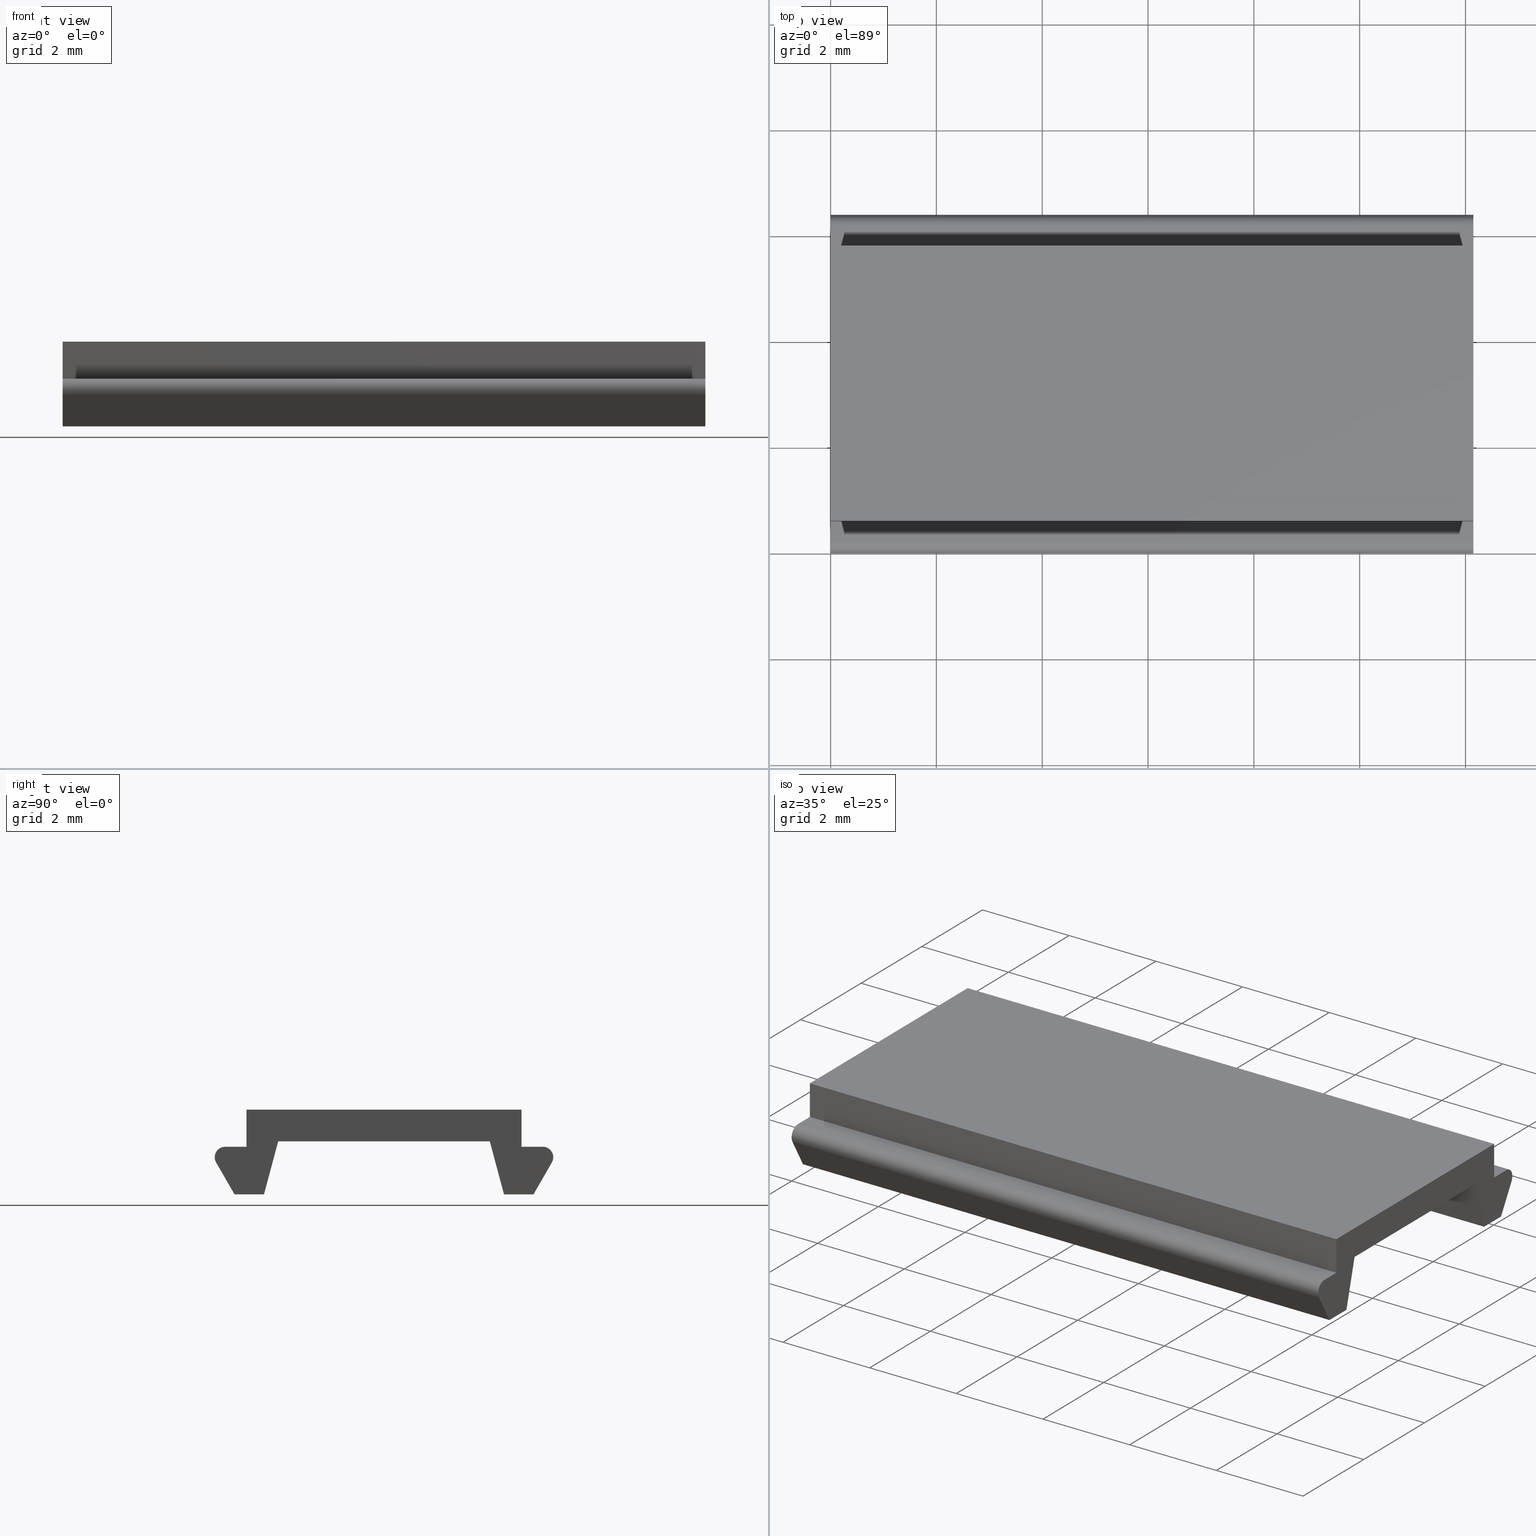
[diagram: canonical four-view strip — front | top / right | iso, engineering-drawing reading convention]
A machine part, canonical four-view strip (front | top / right | iso — engineering-drawing reading convention). The complete STEP part file that produces these views, byte-faithful:
ISO-10303-21;
HEADER;
FILE_DESCRIPTION(('Creo Elements/Direct Modeling STEP Export'),'2;1');
FILE_NAME(
'D:/temp/JobSpoolerServerData/JobServer Files/a916b6dc-9c85-46f2-8b94-6a
b99b1b7ea6/work/output/model.stp','2018-04-03T14:15:28',(''),(''),
'Creo Elements/Direct Modeling STEP processor for AP214 (Solid Model)',
'Creo Elements/Direct Modeling 18.1I  14-Aug-2016 (C) Parametric Technol
ogy GmbH','');
FILE_SCHEMA(('AUTOMOTIVE_DESIGN { 1 0 10303 214 1 1 1 1 }'));
ENDSEC;
DATA;
#10=CARTESIAN_POINT('',(3.25171605650094,-2.,1.30000000000155));
#20=DIRECTION('',(-3.42113882891801E-49,-1.,0.));
#30=DIRECTION('',(0.98480775301208,-3.36916404284913E-49,
0.173648177667655));
#40=AXIS2_PLACEMENT_3D('',#10,#20,#30);
#50=PLANE('',#40);
#60=CARTESIAN_POINT('',(3.32224684878486,-2.,0.900000000000214));
#70=DIRECTION('',(-1.,3.42113882891801E-49,-1.29901644996266E-12));
#80=VECTOR('',#70,1.);
#90=LINE('',#60,#80);
#100=CARTESIAN_POINT('',(6.1999936952603,-2.,0.900000000003953));
#110=VERTEX_POINT('',#100);
#120=CARTESIAN_POINT('',(5.79881796228878,-2.,0.900000000003431));
#130=VERTEX_POINT('',#120);
#140=EDGE_CURVE('',#110,#130,#90,.T.);
#150=ORIENTED_EDGE('',*,*,#140,.T.);
#160=CARTESIAN_POINT('',(6.19999352896042,-2.,0.70117547089784));
#170=DIRECTION('',(-3.42113882891801E-49,-1.,0.));
#180=DIRECTION('',(0.98480775301208,-3.36916404284913E-49,
0.173648177667655));
#190=AXIS2_PLACEMENT_3D('',#160,#170,#180);
#200=CIRCLE('',#190,0.198824529108709);
#210=CARTESIAN_POINT('',(6.37202304304583,-2.,0.601490769675634));
#220=VERTEX_POINT('',#210);
#230=EDGE_CURVE('',#220,#110,#200,.T.);
#240=ORIENTED_EDGE('',*,*,#230,.T.);
#250=CARTESIAN_POINT('',(7.17467322075392,-2.,1.99172319222589));
#260=DIRECTION('',(0.499999586205083,-1.71056799880915E-49,
0.866025642688914));
#270=VECTOR('',#260,1.);
#280=LINE('',#250,#270);
#290=CARTESIAN_POINT('',(6.02475256845767,-2.,3.78763687081118E-12));
#300=VERTEX_POINT('',#290);
#310=EDGE_CURVE('',#300,#220,#280,.T.);
#320=ORIENTED_EDGE('',*,*,#310,.T.);
#330=CARTESIAN_POINT('',(3.48094113142307,-2.,7.54285522930331E-13));
#340=DIRECTION('',(1.,-3.42113882891801E-49,1.19254606190111E-12));
#350=VECTOR('',#340,1.);
#360=LINE('',#330,#350);
#370=CARTESIAN_POINT('',(5.46696525111425,-2.,3.12283532366564E-12));
#380=VERTEX_POINT('',#370);
#390=EDGE_CURVE('',#380,#300,#360,.T.);
#400=ORIENTED_EDGE('',*,*,#390,.T.);
#410=CARTESIAN_POINT('',(5.03440517284383,-2.,1.61433618942948));
#420=DIRECTION('',(0.258819045103242,-8.85455884866183E-50,
-0.965925826288875));
#430=VECTOR('',#420,1.);
#440=LINE('',#410,#430);
#450=CARTESIAN_POINT('',(5.19901605868237,-2.,1.00000000000297));
#460=VERTEX_POINT('',#450);
#470=EDGE_CURVE('',#460,#380,#440,.T.);
#480=ORIENTED_EDGE('',*,*,#470,.T.);
#490=CARTESIAN_POINT('',(3.3046141507137,-2.,1.00000000000157));
#500=DIRECTION('',(1.,-3.42113882891801E-49,7.41434691420295E-13));
#510=VECTOR('',#500,1.);
#520=LINE('',#490,#510);
#530=CARTESIAN_POINT('',(1.198619865895,-2.,1.00000000000001));
#540=VERTEX_POINT('',#530);
#550=EDGE_CURVE('',#540,#460,#520,.T.);
#560=ORIENTED_EDGE('',*,*,#550,.T.);
#570=CARTESIAN_POINT('',(1.18117862033904,-2.,0.934908385437702));
#580=DIRECTION('',(0.258819045101854,-8.85455884861435E-50,
0.965925826289247));
#590=VECTOR('',#580,1.);
#600=LINE('',#570,#590);
#610=CARTESIAN_POINT('',(0.930670673464537,-2.,-2.77999845366139E-13));
#620=VERTEX_POINT('',#610);
#630=EDGE_CURVE('',#620,#540,#600,.T.);
#640=ORIENTED_EDGE('',*,*,#630,.T.);
#650=CARTESIAN_POINT('',(3.48094113142325,-2.,-2.78221889971064E-13));
#660=DIRECTION('',(1.,-3.42113882891801E-49,-2.77555756156289E-17));
#670=VECTOR('',#660,1.);
#680=LINE('',#650,#670);
#690=CARTESIAN_POINT('',(0.372883356121179,-2.,-2.77999845366139E-13));
#700=VERTEX_POINT('',#690);
#710=EDGE_CURVE('',#700,#620,#680,.T.);
#720=ORIENTED_EDGE('',*,*,#710,.T.);
#730=CARTESIAN_POINT('',(-0.0423296762644876,-2.,0.719170861624918));
#740=DIRECTION('',(0.499999586206395,-1.71056799881364E-49,
-0.866025642688156));
#750=VECTOR('',#740,1.);
#760=LINE('',#730,#750);
#770=CARTESIAN_POINT('',(0.0256128815321159,-2.,0.601490769671017));
#780=VERTEX_POINT('',#770);
#790=EDGE_CURVE('',#780,#700,#760,.T.);
#800=ORIENTED_EDGE('',*,*,#790,.T.);
#810=CARTESIAN_POINT('',(0.197642395617414,-2.,0.701175470893366));
#820=DIRECTION('',(-3.42113882891801E-49,-1.,0.));
#830=DIRECTION('',(0.98480775301208,-3.36916404284913E-49,
0.173648177667655));
#840=AXIS2_PLACEMENT_3D('',#810,#820,#830);
#850=CIRCLE('',#840,0.198824529108738);
#860=CARTESIAN_POINT('',(0.197642229317264,-2.,0.900000000002034));
#870=VERTEX_POINT('',#860);
#880=EDGE_CURVE('',#870,#780,#850,.T.);
#890=ORIENTED_EDGE('',*,*,#880,.T.);
#900=CARTESIAN_POINT('',(3.32224684878444,-2.,0.900000000002615));
#910=DIRECTION('',(1.,-3.42113882891801E-49,1.85934601049098E-13));
#920=VECTOR('',#910,1.);
#930=LINE('',#900,#920);
#940=CARTESIAN_POINT('',(0.598817962288826,-2.,0.900000000002109));
#950=VERTEX_POINT('',#940);
#960=EDGE_CURVE('',#870,#950,#930,.T.);
#970=ORIENTED_EDGE('',*,*,#960,.F.);
#980=CARTESIAN_POINT('',(0.598817962288898,-2.,0.832222488919884));
#990=DIRECTION('',(1.06326059068351E-12,-3.63756209204566E-61,-1.));
#1000=VECTOR('',#990,1.);
#1010=LINE('',#980,#1000);
#1020=CARTESIAN_POINT('',(0.598817962288082,-2.,1.59999999999953));
#1030=VERTEX_POINT('',#1020);
#1040=EDGE_CURVE('',#1030,#950,#1010,.T.);
#1050=ORIENTED_EDGE('',*,*,#1040,.T.);
#1060=CARTESIAN_POINT('',(3.19881796228819,-2.,1.60000000000147));
#1070=DIRECTION('',(-1.,3.42113882891801E-49,-7.45070671825943E-13));
#1080=VECTOR('',#1070,1.);
#1090=LINE('',#1060,#1080);
#1100=CARTESIAN_POINT('',(5.79881796228829,-2.,1.6000000000034));
#1110=VERTEX_POINT('',#1100);
#1120=EDGE_CURVE('',#1110,#1030,#1090,.T.);
#1130=ORIENTED_EDGE('',*,*,#1120,.T.);
#1140=CARTESIAN_POINT('',(5.79881796228819,-2.,1.74912278860772));
#1150=DIRECTION('',(-6.94277968449342E-13,2.37522131592436E-61,1.));
#1160=VECTOR('',#1150,1.);
#1170=LINE('',#1140,#1160);
#1180=EDGE_CURVE('',#130,#1110,#1170,.T.);
#1190=ORIENTED_EDGE('',*,*,#1180,.T.);
#1200=EDGE_LOOP('',(#1190,#1130,#1050,#970,#890,#800,#720,#640,#560,#480
,#400,#320,#240,#150));
#1210=FACE_OUTER_BOUND('',#1200,.T.);
#1220=ADVANCED_FACE('',(#1210),#50,.T.);
#1230=COLOUR_RGB('',0.980392217636108,1.,1.);
#1240=FILL_AREA_STYLE_COLOUR('',#1230);
#1250=FILL_AREA_STYLE('',(#1240));
#1260=SURFACE_STYLE_FILL_AREA(#1250);
#1270=SURFACE_SIDE_STYLE('',(#1260));
#1280=SURFACE_STYLE_USAGE(.BOTH.,#1270);
#1290=PRESENTATION_STYLE_ASSIGNMENT((#1280));
#1300=CARTESIAN_POINT('',(3.25171605650094,10.15,1.30000000000155));
#1310=DIRECTION('',(-3.42113882891801E-49,-1.,0.));
#1320=DIRECTION('',(0.98480775301208,-3.36916404284913E-49,
0.173648177667655));
#1330=AXIS2_PLACEMENT_3D('',#1300,#1310,#1320);
#1340=PLANE('',#1330);
#1350=CARTESIAN_POINT('',(5.79881796228819,10.15,1.74912278860772));
#1360=DIRECTION('',(-6.94277968449342E-13,2.37522131592436E-61,1.));
#1370=VECTOR('',#1360,1.);
#1380=LINE('',#1350,#1370);
#1390=CARTESIAN_POINT('',(5.79881796228878,10.15,0.900000000003431));
#1400=VERTEX_POINT('',#1390);
#1410=CARTESIAN_POINT('',(5.79881796228829,10.15,1.6000000000034));
#1420=VERTEX_POINT('',#1410);
#1430=EDGE_CURVE('',#1400,#1420,#1380,.T.);
#1440=ORIENTED_EDGE('',*,*,#1430,.F.);
#1450=CARTESIAN_POINT('',(3.19881796228819,10.15,1.60000000000147));
#1460=DIRECTION('',(-1.,3.42113882891801E-49,-7.45070671825943E-13));
#1470=VECTOR('',#1460,1.);
#1480=LINE('',#1450,#1470);
#1490=CARTESIAN_POINT('',(0.598817962288082,10.15,1.59999999999953));
#1500=VERTEX_POINT('',#1490);
#1510=EDGE_CURVE('',#1420,#1500,#1480,.T.);
#1520=ORIENTED_EDGE('',*,*,#1510,.F.);
#1530=CARTESIAN_POINT('',(0.598817962288898,10.15,0.832222488919884));
#1540=DIRECTION('',(1.06326059068351E-12,-3.63756209204566E-61,-1.));
#1550=VECTOR('',#1540,1.);
#1560=LINE('',#1530,#1550);
#1570=CARTESIAN_POINT('',(0.598817962288826,10.15,0.900000000002109));
#1580=VERTEX_POINT('',#1570);
#1590=EDGE_CURVE('',#1500,#1580,#1560,.T.);
#1600=ORIENTED_EDGE('',*,*,#1590,.F.);
#1610=CARTESIAN_POINT('',(3.32224684878444,10.15,0.900000000002615));
#1620=DIRECTION('',(1.,-3.42113882891801E-49,1.85934601049098E-13));
#1630=VECTOR('',#1620,1.);
#1640=LINE('',#1610,#1630);
#1650=CARTESIAN_POINT('',(0.197642229317264,10.15,0.900000000002034));
#1660=VERTEX_POINT('',#1650);
#1670=EDGE_CURVE('',#1660,#1580,#1640,.T.);
#1680=ORIENTED_EDGE('',*,*,#1670,.T.);
#1690=CARTESIAN_POINT('',(0.197642395617414,10.15,0.701175470893366));
#1700=DIRECTION('',(-3.42113882891801E-49,-1.,0.));
#1710=DIRECTION('',(0.98480775301208,-3.36916404284913E-49,
0.173648177667655));
#1720=AXIS2_PLACEMENT_3D('',#1690,#1700,#1710);
#1730=CIRCLE('',#1720,0.198824529108738);
#1740=CARTESIAN_POINT('',(0.0256128815321159,10.15,0.601490769671017));
#1750=VERTEX_POINT('',#1740);
#1760=EDGE_CURVE('',#1660,#1750,#1730,.T.);
#1770=ORIENTED_EDGE('',*,*,#1760,.F.);
#1780=CARTESIAN_POINT('',(-0.0423296762644876,10.15,0.719170861624918));
#1790=DIRECTION('',(0.499999586206395,-1.71056799881364E-49,
-0.866025642688156));
#1800=VECTOR('',#1790,1.);
#1810=LINE('',#1780,#1800);
#1820=CARTESIAN_POINT('',(0.372883356121178,10.15,-2.78221889971064E-13)
);
#1830=VERTEX_POINT('',#1820);
#1840=EDGE_CURVE('',#1750,#1830,#1810,.T.);
#1850=ORIENTED_EDGE('',*,*,#1840,.F.);
#1860=CARTESIAN_POINT('',(3.48094113142325,10.15,-2.78221889971064E-13))
;
#1870=DIRECTION('',(1.,-3.42113882891801E-49,-2.77555756156289E-17));
#1880=VECTOR('',#1870,1.);
#1890=LINE('',#1860,#1880);
#1900=CARTESIAN_POINT('',(0.930670673464537,10.15,-2.77999845366139E-13)
);
#1910=VERTEX_POINT('',#1900);
#1920=EDGE_CURVE('',#1830,#1910,#1890,.T.);
#1930=ORIENTED_EDGE('',*,*,#1920,.F.);
#1940=CARTESIAN_POINT('',(1.18117862033904,10.15,0.934908385437702));
#1950=DIRECTION('',(0.258819045101854,-8.85455884861435E-50,
0.965925826289247));
#1960=VECTOR('',#1950,1.);
#1970=LINE('',#1940,#1960);
#1980=CARTESIAN_POINT('',(1.198619865895,10.15,1.00000000000001));
#1990=VERTEX_POINT('',#1980);
#2000=EDGE_CURVE('',#1910,#1990,#1970,.T.);
#2010=ORIENTED_EDGE('',*,*,#2000,.F.);
#2020=CARTESIAN_POINT('',(3.3046141507137,10.15,1.00000000000157));
#2030=DIRECTION('',(1.,-3.42113882891801E-49,7.41434691420295E-13));
#2040=VECTOR('',#2030,1.);
#2050=LINE('',#2020,#2040);
#2060=CARTESIAN_POINT('',(5.19901605868237,10.15,1.00000000000297));
#2070=VERTEX_POINT('',#2060);
#2080=EDGE_CURVE('',#1990,#2070,#2050,.T.);
#2090=ORIENTED_EDGE('',*,*,#2080,.F.);
#2100=CARTESIAN_POINT('',(5.03440517284383,10.15,1.61433618942948));
#2110=DIRECTION('',(0.258819045103242,-8.85455884866183E-50,
-0.965925826288875));
#2120=VECTOR('',#2110,1.);
#2130=LINE('',#2100,#2120);
#2140=CARTESIAN_POINT('',(5.46696525111425,10.15,3.12283532366564E-12));
#2150=VERTEX_POINT('',#2140);
#2160=EDGE_CURVE('',#2070,#2150,#2130,.T.);
#2170=ORIENTED_EDGE('',*,*,#2160,.F.);
#2180=CARTESIAN_POINT('',(3.48094113142307,10.15,7.54285522930331E-13));
#2190=DIRECTION('',(1.,-3.42113882891801E-49,1.19254606190111E-12));
#2200=VECTOR('',#2190,1.);
#2210=LINE('',#2180,#2200);
#2220=CARTESIAN_POINT('',(6.02475256845767,10.15,3.78808096002103E-12));
#2230=VERTEX_POINT('',#2220);
#2240=EDGE_CURVE('',#2150,#2230,#2210,.T.);
#2250=ORIENTED_EDGE('',*,*,#2240,.F.);
#2260=CARTESIAN_POINT('',(7.17467322075392,10.15,1.99172319222589));
#2270=DIRECTION('',(0.499999586205083,-1.71056799880915E-49,
0.866025642688914));
#2280=VECTOR('',#2270,1.);
#2290=LINE('',#2260,#2280);
#2300=CARTESIAN_POINT('',(6.37202304304583,10.15,0.601490769675634));
#2310=VERTEX_POINT('',#2300);
#2320=EDGE_CURVE('',#2230,#2310,#2290,.T.);
#2330=ORIENTED_EDGE('',*,*,#2320,.F.);
#2340=CARTESIAN_POINT('',(6.19999352896042,10.15,0.70117547089784));
#2350=DIRECTION('',(-3.42113882891801E-49,-1.,0.));
#2360=DIRECTION('',(0.98480775301208,-3.36916404284913E-49,
0.173648177667655));
#2370=AXIS2_PLACEMENT_3D('',#2340,#2350,#2360);
#2380=CIRCLE('',#2370,0.198824529108709);
#2390=CARTESIAN_POINT('',(6.1999936952603,10.15,0.900000000003953));
#2400=VERTEX_POINT('',#2390);
#2410=EDGE_CURVE('',#2310,#2400,#2380,.T.);
#2420=ORIENTED_EDGE('',*,*,#2410,.F.);
#2430=CARTESIAN_POINT('',(3.32224684878486,10.15,0.900000000000214));
#2440=DIRECTION('',(-1.,3.42113882891801E-49,-1.29901644996266E-12));
#2450=VECTOR('',#2440,1.);
#2460=LINE('',#2430,#2450);
#2470=EDGE_CURVE('',#2400,#1400,#2460,.T.);
#2480=ORIENTED_EDGE('',*,*,#2470,.F.);
#2490=EDGE_LOOP('',(#2480,#2420,#2330,#2250,#2170,#2090,#2010,#1930,
#1850,#1770,#1680,#1600,#1520,#1440));
#2500=FACE_OUTER_BOUND('',#2490,.T.);
#2510=ADVANCED_FACE('',(#2500),#1340,.F.);
#2520=COLOUR_RGB('',0.980392217636108,1.,1.);
#2530=FILL_AREA_STYLE_COLOUR('',#2520);
#2540=FILL_AREA_STYLE('',(#2530));
#2550=SURFACE_STYLE_FILL_AREA(#2540);
#2560=SURFACE_SIDE_STYLE('',(#2550));
#2570=SURFACE_STYLE_USAGE(.BOTH.,#2560);
#2580=PRESENTATION_STYLE_ASSIGNMENT((#2570));
#2590=CARTESIAN_POINT('',(0.286280839633144,-3.53938975060473E-49,
0.15000012413783));
#2600=DIRECTION('',(0.866025642688156,-2.96279395303913E-49,
0.499999586206395));
#2610=DIRECTION('',(0.499999586206395,-1.71056799881364E-49,
-0.866025642688156));
#2620=AXIS2_PLACEMENT_3D('',#2590,#2600,#2610);
#2630=PLANE('',#2620);
#2640=CARTESIAN_POINT('',(0.372883356121179,-3.83566898244395E-49,
-2.77999845366139E-13));
#2650=DIRECTION('',(-3.42113882891801E-49,-1.,0.));
#2660=VECTOR('',#2650,1.);
#2670=LINE('',#2640,#2660);
#2680=EDGE_CURVE('',#1830,#700,#2670,.T.);
#2690=ORIENTED_EDGE('',*,*,#2680,.T.);
#2700=ORIENTED_EDGE('',*,*,#1840,.T.);
#2710=CARTESIAN_POINT('',(0.0256128815321137,-2.64760847769052E-49,
0.601490769671021));
#2720=DIRECTION('',(3.42113882891801E-49,1.,0.));
#2730=VECTOR('',#2720,1.);
#2740=LINE('',#2710,#2730);
#2750=EDGE_CURVE('',#780,#1750,#2740,.T.);
#2760=ORIENTED_EDGE('',*,*,#2750,.T.);
#2770=ORIENTED_EDGE('',*,*,#790,.F.);
#2780=EDGE_LOOP('',(#2770,#2760,#2700,#2690));
#2790=FACE_OUTER_BOUND('',#2780,.T.);
#2800=ADVANCED_FACE('',(#2790),#2630,.F.);
#2810=COLOUR_RGB('',0.980392217636108,1.,1.);
#2820=FILL_AREA_STYLE_COLOUR('',#2810);
#2830=FILL_AREA_STYLE('',(#2820));
#2840=SURFACE_STYLE_FILL_AREA(#2830);
#2850=SURFACE_SIDE_STYLE('',(#2840));
#2860=SURFACE_STYLE_USAGE(.BOTH.,#2850);
#2870=PRESENTATION_STYLE_ASSIGNMENT((#2860));
#2880=CARTESIAN_POINT('',(0.197642395617414,-3.23614532804764E-49,
0.701175470893366));
#2890=DIRECTION('',(-3.42113882891801E-49,-1.,0.));
#2900=DIRECTION('',(0.98480775301208,-3.36916404284913E-49,
0.173648177667655));
#2910=AXIS2_PLACEMENT_3D('',#2880,#2890,#2900);
#2920=CYLINDRICAL_SURFACE('',#2910,0.198824529108738);
#2930=ORIENTED_EDGE('',*,*,#880,.F.);
#2940=ORIENTED_EDGE('',*,*,#2750,.F.);
#2950=ORIENTED_EDGE('',*,*,#1760,.T.);
#2960=CARTESIAN_POINT('',(0.197642229317264,-3.23614475911174E-49,
0.900000000002034));
#2970=DIRECTION('',(3.42113882891801E-49,1.,0.));
#2980=VECTOR('',#2970,1.);
#2990=LINE('',#2960,#2980);
#3000=EDGE_CURVE('',#870,#1660,#2990,.T.);
#3010=ORIENTED_EDGE('',*,*,#3000,.T.);
#3020=EDGE_LOOP('',(#3010,#2950,#2940,#2930));
#3030=FACE_OUTER_BOUND('',#3020,.T.);
#3040=ADVANCED_FACE('',(#3030),#2920,.T.);
#3050=COLOUR_RGB('',0.980392217636108,1.,1.);
#3060=FILL_AREA_STYLE_COLOUR('',#3050);
#3070=FILL_AREA_STYLE('',(#3060));
#3080=SURFACE_STYLE_FILL_AREA(#3070);
#3090=SURFACE_SIDE_STYLE('',(#3080));
#3100=SURFACE_STYLE_USAGE(.BOTH.,#3090);
#3110=PRESENTATION_STYLE_ASSIGNMENT((#3100));
#3120=CARTESIAN_POINT('',(0.623739878273056,-4.69388397086507E-49,
-2.77999845366139E-13));
#3130=DIRECTION('',(2.77555756156289E-17,-9.4955677457598E-66,1.));
#3140=DIRECTION('',(1.,-3.42113882891801E-49,-2.77555756156289E-17));
#3150=AXIS2_PLACEMENT_3D('',#3120,#3130,#3140);
#3160=PLANE('',#3150);
#3170=ORIENTED_EDGE('',*,*,#710,.F.);
#3180=CARTESIAN_POINT('',(0.930670673464537,-5.74393683208533E-49,
-2.77999845366139E-13));
#3190=DIRECTION('',(-3.42113882891801E-49,-1.,0.));
#3200=VECTOR('',#3190,1.);
#3210=LINE('',#3180,#3200);
#3220=EDGE_CURVE('',#1910,#620,#3210,.T.);
#3230=ORIENTED_EDGE('',*,*,#3220,.T.);
#3240=ORIENTED_EDGE('',*,*,#1920,.T.);
#3250=ORIENTED_EDGE('',*,*,#2680,.F.);
#3260=EDGE_LOOP('',(#3250,#3240,#3230,#3170));
#3270=FACE_OUTER_BOUND('',#3260,.T.);
#3280=ADVANCED_FACE('',(#3270),#3160,.F.);
#3290=COLOUR_RGB('',0.980392217636108,1.,1.);
#3300=FILL_AREA_STYLE_COLOUR('',#3290);
#3310=FILL_AREA_STYLE('',(#3300));
#3320=SURFACE_STYLE_FILL_AREA(#3310);
#3330=SURFACE_SIDE_STYLE('',(#3320));
#3340=SURFACE_STYLE_USAGE(.BOTH.,#3330);
#3350=PRESENTATION_STYLE_ASSIGNMENT((#3340));
#3360=CARTESIAN_POINT('',(0.197642229317264,-3.23614475911174E-49,
0.900000000002034));
#3370=DIRECTION('',(1.85934601049098E-13,-6.36108083288449E-62,-1.));
#3380=DIRECTION('',(-1.,3.42113882891801E-49,-1.85934601049098E-13));
#3390=AXIS2_PLACEMENT_3D('',#3360,#3370,#3380);
#3400=PLANE('',#3390);
#3410=ORIENTED_EDGE('',*,*,#960,.T.);
#3420=ORIENTED_EDGE('',*,*,#3000,.F.);
#3430=ORIENTED_EDGE('',*,*,#1670,.F.);
#3440=CARTESIAN_POINT('',(0.598817962288826,-4.60862263640039E-49,
0.900000000002108));
#3450=DIRECTION('',(-3.42113882891801E-49,-1.,0.));
#3460=VECTOR('',#3450,1.);
#3470=LINE('',#3440,#3460);
#3480=EDGE_CURVE('',#1580,#950,#3470,.T.);
#3490=ORIENTED_EDGE('',*,*,#3480,.F.);
#3500=EDGE_LOOP('',(#3490,#3430,#3420,#3410));
#3510=FACE_OUTER_BOUND('',#3500,.T.);
#3520=ADVANCED_FACE('',(#3510),#3400,.F.);
#3530=COLOUR_RGB('',0.980392217636108,1.,1.);
#3540=FILL_AREA_STYLE_COLOUR('',#3530);
#3550=FILL_AREA_STYLE('',(#3540));
#3560=SURFACE_STYLE_FILL_AREA(#3550);
#3570=SURFACE_SIDE_STYLE('',(#3560));
#3580=SURFACE_STYLE_USAGE(.BOTH.,#3570);
#3590=PRESENTATION_STYLE_ASSIGNMENT((#3580));
#3600=CARTESIAN_POINT('',(1.13904021440212,-6.4567979593507E-49,
0.777645713530718));
#3610=DIRECTION('',(-0.965925826289247,3.30456635017286E-49,
0.258819045101854));
#3620=DIRECTION('',(0.258819045101854,-8.85455884861435E-50,
0.965925826289247));
#3630=AXIS2_PLACEMENT_3D('',#3600,#3610,#3620);
#3640=PLANE('',#3630);
#3650=CARTESIAN_POINT('',(1.198619865895,-6.6606282184864E-49,
1.00000000000001));
#3660=DIRECTION('',(-3.42113882891801E-49,-1.,0.));
#3670=VECTOR('',#3660,1.);
#3680=LINE('',#3650,#3670);
#3690=EDGE_CURVE('',#1990,#540,#3680,.T.);
#3700=ORIENTED_EDGE('',*,*,#3690,.T.);
#3710=ORIENTED_EDGE('',*,*,#2000,.T.);
#3720=ORIENTED_EDGE('',*,*,#3220,.F.);
#3730=ORIENTED_EDGE('',*,*,#630,.F.);
#3740=EDGE_LOOP('',(#3730,#3720,#3710,#3700));
#3750=FACE_OUTER_BOUND('',#3740,.T.);
#3760=ADVANCED_FACE('',(#3750),#3640,.F.);
#3770=COLOUR_RGB('',0.980392217636108,1.,1.);
#3780=FILL_AREA_STYLE_COLOUR('',#3770);
#3790=FILL_AREA_STYLE('',(#3780));
#3800=SURFACE_STYLE_FILL_AREA(#3790);
#3810=SURFACE_SIDE_STYLE('',(#3800));
#3820=SURFACE_STYLE_USAGE(.BOTH.,#3810);
#3830=PRESENTATION_STYLE_ASSIGNMENT((#3820));
#3840=CARTESIAN_POINT('',(5.99881796228881,-2.30827723125576E-48,
0.900000000003691));
#3850=DIRECTION('',(1.29901644996266E-12,-4.4441156163705E-61,-1.));
#3860=DIRECTION('',(-1.,3.42113882891801E-49,-1.29901644996266E-12));
#3870=AXIS2_PLACEMENT_3D('',#3840,#3850,#3860);
#3880=PLANE('',#3870);
#3890=CARTESIAN_POINT('',(5.79881796228878,-2.23985445467739E-48,
0.900000000003431));
#3900=DIRECTION('',(-3.42113882891801E-49,-1.,0.));
#3910=VECTOR('',#3900,1.);
#3920=LINE('',#3890,#3910);
#3930=EDGE_CURVE('',#1400,#130,#3920,.T.);
#3940=ORIENTED_EDGE('',*,*,#3930,.T.);
#3950=ORIENTED_EDGE('',*,*,#2470,.T.);
#3960=CARTESIAN_POINT('',(6.1999936952603,-2.37710224240624E-48,
0.900000000003954));
#3970=DIRECTION('',(3.42113882891801E-49,1.,0.));
#3980=VECTOR('',#3970,1.);
#3990=LINE('',#3960,#3980);
#4000=EDGE_CURVE('',#110,#2400,#3990,.T.);
#4010=ORIENTED_EDGE('',*,*,#4000,.T.);
#4020=ORIENTED_EDGE('',*,*,#140,.F.);
#4030=EDGE_LOOP('',(#4020,#4010,#3950,#3940));
#4040=FACE_OUTER_BOUND('',#4030,.T.);
#4050=ADVANCED_FACE('',(#4040),#3880,.F.);
#4060=COLOUR_RGB('',0.980392217636108,1.,1.);
#4070=FILL_AREA_STYLE_COLOUR('',#4060);
#4080=FILL_AREA_STYLE('',(#4070));
#4090=SURFACE_STYLE_FILL_AREA(#4080);
#4100=SURFACE_SIDE_STYLE('',(#4090));
#4110=SURFACE_STYLE_USAGE(.BOTH.,#4100);
#4120=PRESENTATION_STYLE_ASSIGNMENT((#4110));
#4130=CARTESIAN_POINT('',(4.96881796228863,-1.95589993187714E-48,
1.0000000000028));
#4140=DIRECTION('',(-7.41434691420295E-13,2.53655101192482E-61,1.));
#4150=DIRECTION('',(1.,-3.42113882891801E-49,7.41434691420295E-13));
#4160=AXIS2_PLACEMENT_3D('',#4130,#4140,#4150);
#4170=PLANE('',#4160);
#4180=ORIENTED_EDGE('',*,*,#550,.F.);
#4190=CARTESIAN_POINT('',(5.19901605868237,-2.03465389646871E-48,
1.00000000000297));
#4200=DIRECTION('',(-3.42113882891801E-49,-1.,0.));
#4210=VECTOR('',#4200,1.);
#4220=LINE('',#4190,#4210);
#4230=EDGE_CURVE('',#2070,#460,#4220,.T.);
#4240=ORIENTED_EDGE('',*,*,#4230,.T.);
#4250=ORIENTED_EDGE('',*,*,#2080,.T.);
#4260=ORIENTED_EDGE('',*,*,#3690,.F.);
#4270=EDGE_LOOP('',(#4260,#4250,#4240,#4180));
#4280=FACE_OUTER_BOUND('',#4270,.T.);
#4290=ADVANCED_FACE('',(#4280),#4170,.F.);
#4300=COLOUR_RGB('',0.980392217636108,1.,1.);
#4310=FILL_AREA_STYLE_COLOUR('',#4300);
#4320=FILL_AREA_STYLE('',(#4310));
#4330=SURFACE_STYLE_FILL_AREA(#4320);
#4340=SURFACE_SIDE_STYLE('',(#4330));
#4350=SURFACE_STYLE_USAGE(.BOTH.,#4340);
#4360=PRESENTATION_STYLE_ASSIGNMENT((#4350));
#4370=CARTESIAN_POINT('',(5.79881796228843,-2.23985445467727E-48,
1.40000000000345));
#4380=DIRECTION('',(-1.,3.42113882891801E-49,-6.94277968449342E-13));
#4390=DIRECTION('',(-6.94277968449342E-13,2.37522131592436E-61,1.));
#4400=AXIS2_PLACEMENT_3D('',#4370,#4380,#4390);
#4410=PLANE('',#4400);
#4420=ORIENTED_EDGE('',*,*,#1180,.F.);
#4430=CARTESIAN_POINT('',(5.79881796228829,-2.23985445467722E-48,
1.6000000000034));
#4440=DIRECTION('',(-3.42113882891801E-49,-1.,0.));
#4450=VECTOR('',#4440,1.);
#4460=LINE('',#4430,#4450);
#4470=EDGE_CURVE('',#1420,#1110,#4460,.T.);
#4480=ORIENTED_EDGE('',*,*,#4470,.T.);
#4490=ORIENTED_EDGE('',*,*,#1430,.T.);
#4500=ORIENTED_EDGE('',*,*,#3930,.F.);
#4510=EDGE_LOOP('',(#4500,#4490,#4480,#4420));
#4520=FACE_OUTER_BOUND('',#4510,.T.);
#4530=ADVANCED_FACE('',(#4520),#4410,.F.);
#4540=COLOUR_RGB('',0.980392217636108,1.,1.);
#4550=FILL_AREA_STYLE_COLOUR('',#4540);
#4560=FILL_AREA_STYLE('',(#4550));
#4570=SURFACE_STYLE_FILL_AREA(#4560);
#4580=SURFACE_SIDE_STYLE('',(#4570));
#4590=SURFACE_STYLE_USAGE(.BOTH.,#4580);
#4600=PRESENTATION_STYLE_ASSIGNMENT((#4590));
#4610=CARTESIAN_POINT('',(5.38752571578993,-2.09914566722437E-48,
0.296472381962271));
#4620=DIRECTION('',(0.965925826288875,-3.30456635017158E-49,
0.258819045103242));
#4630=DIRECTION('',(0.258819045103242,-8.85455884866183E-50,
-0.965925826288875));
#4640=AXIS2_PLACEMENT_3D('',#4610,#4620,#4630);
#4650=PLANE('',#4640);
#4660=ORIENTED_EDGE('',*,*,#470,.F.);
#4670=CARTESIAN_POINT('',(5.46696525111425,-2.1263230351093E-48,
3.12283532366564E-12));
#4680=DIRECTION('',(-3.42113882891801E-49,-1.,0.));
#4690=VECTOR('',#4680,1.);
#4700=LINE('',#4670,#4690);
#4710=EDGE_CURVE('',#2150,#380,#4700,.T.);
#4720=ORIENTED_EDGE('',*,*,#4710,.T.);
#4730=ORIENTED_EDGE('',*,*,#2160,.T.);
#4740=ORIENTED_EDGE('',*,*,#4230,.F.);
#4750=EDGE_LOOP('',(#4740,#4730,#4720,#4660));
#4760=FACE_OUTER_BOUND('',#4750,.T.);
#4770=ADVANCED_FACE('',(#4760),#4650,.F.);
#4780=COLOUR_RGB('',0.980392217636108,1.,1.);
#4790=FILL_AREA_STYLE_COLOUR('',#4780);
#4800=FILL_AREA_STYLE('',(#4790));
#4810=SURFACE_STYLE_FILL_AREA(#4800);
#4820=SURFACE_SIDE_STYLE('',(#4810));
#4830=SURFACE_STYLE_USAGE(.BOTH.,#4820);
#4840=PRESENTATION_STYLE_ASSIGNMENT((#4830));
#4850=CARTESIAN_POINT('',(0.598817962288614,-4.60862263639967E-49,
1.09999999999973));
#4860=DIRECTION('',(1.,-3.42113882891801E-49,1.06326059068351E-12));
#4870=DIRECTION('',(1.06326059068351E-12,-3.63756209204566E-61,-1.));
#4880=AXIS2_PLACEMENT_3D('',#4850,#4860,#4870);
#4890=PLANE('',#4880);
#4900=ORIENTED_EDGE('',*,*,#1040,.F.);
#4910=ORIENTED_EDGE('',*,*,#3480,.T.);
#4920=ORIENTED_EDGE('',*,*,#1590,.T.);
#4930=CARTESIAN_POINT('',(0.598817962288082,-4.60862263639785E-49,
1.59999999999953));
#4940=DIRECTION('',(-3.42113882891801E-49,-1.,0.));
#4950=VECTOR('',#4940,1.);
#4960=LINE('',#4930,#4950);
#4970=EDGE_CURVE('',#1500,#1030,#4960,.T.);
#4980=ORIENTED_EDGE('',*,*,#4970,.F.);
#4990=EDGE_LOOP('',(#4980,#4920,#4910,#4900));
#5000=FACE_OUTER_BOUND('',#4990,.T.);
#5010=ADVANCED_FACE('',(#5000),#4890,.F.);
#5020=COLOUR_RGB('',0.980392217636108,1.,1.);
#5030=FILL_AREA_STYLE_COLOUR('',#5020);
#5040=FILL_AREA_STYLE('',(#5030));
#5050=SURFACE_STYLE_FILL_AREA(#5040);
#5060=SURFACE_SIDE_STYLE('',(#5050));
#5070=SURFACE_STYLE_USAGE(.BOTH.,#5060);
#5080=PRESENTATION_STYLE_ASSIGNMENT((#5070));
#5090=CARTESIAN_POINT('',(5.85154739213906,-2.25789392466614E-48,
3.58157947744076E-12));
#5100=DIRECTION('',(-1.19254606190111E-12,4.07986563764316E-61,1.));
#5110=DIRECTION('',(1.,-3.42113882891801E-49,1.19254606190111E-12));
#5120=AXIS2_PLACEMENT_3D('',#5090,#5100,#5110);
#5130=PLANE('',#5120);
#5140=CARTESIAN_POINT('',(6.02475256845767,-2.31714982007346E-48,
3.78808096002103E-12));
#5150=DIRECTION('',(-3.42113882891801E-49,-1.,0.));
#5160=VECTOR('',#5150,1.);
#5170=LINE('',#5140,#5160);
#5180=EDGE_CURVE('',#2230,#300,#5170,.T.);
#5190=ORIENTED_EDGE('',*,*,#5180,.T.);
#5200=ORIENTED_EDGE('',*,*,#2240,.T.);
#5210=ORIENTED_EDGE('',*,*,#4710,.F.);
#5220=ORIENTED_EDGE('',*,*,#390,.F.);
#5230=EDGE_LOOP('',(#5220,#5210,#5200,#5190));
#5240=FACE_OUTER_BOUND('',#5230,.T.);
#5250=ADVANCED_FACE('',(#5240),#5130,.F.);
#5260=COLOUR_RGB('',0.980392217636108,1.,1.);
#5270=FILL_AREA_STYLE_COLOUR('',#5260);
#5280=FILL_AREA_STYLE('',(#5270));
#5290=SURFACE_STYLE_FILL_AREA(#5280);
#5300=SURFACE_SIDE_STYLE('',(#5290));
#5310=SURFACE_STYLE_USAGE(.BOTH.,#5300);
#5320=PRESENTATION_STYLE_ASSIGNMENT((#5310));
#5330=CARTESIAN_POINT('',(0.798817962288231,-5.29285040218196E-49,
1.59999999999968));
#5340=DIRECTION('',(7.45070671825943E-13,-2.54899020567176E-61,-1.));
#5350=DIRECTION('',(-1.,3.42113882891801E-49,-7.45070671825943E-13));
#5360=AXIS2_PLACEMENT_3D('',#5330,#5340,#5350);
#5370=PLANE('',#5360);
#5380=ORIENTED_EDGE('',*,*,#1120,.F.);
#5390=ORIENTED_EDGE('',*,*,#4970,.T.);
#5400=ORIENTED_EDGE('',*,*,#1510,.T.);
#5410=ORIENTED_EDGE('',*,*,#4470,.F.);
#5420=EDGE_LOOP('',(#5410,#5400,#5390,#5380));
#5430=FACE_OUTER_BOUND('',#5420,.T.);
#5440=ADVANCED_FACE('',(#5430),#5370,.F.);
#5450=COLOUR_RGB('',0.980392217636108,1.,1.);
#5460=FILL_AREA_STYLE_COLOUR('',#5450);
#5470=FILL_AREA_STYLE('',(#5460));
#5480=SURFACE_STYLE_FILL_AREA(#5470);
#5490=SURFACE_SIDE_STYLE('',(#5480));
#5500=SURFACE_STYLE_USAGE(.BOTH.,#5490);
#5510=PRESENTATION_STYLE_ASSIGNMENT((#5500));
#5520=CARTESIAN_POINT('',(6.37202304304583,-2.43595587054849E-48,
0.601490769675638));
#5530=DIRECTION('',(-0.866025642688914,2.96279395304172E-49,
0.499999586205083));
#5540=DIRECTION('',(0.499999586205083,-1.71056799880915E-49,
0.866025642688914));
#5550=AXIS2_PLACEMENT_3D('',#5520,#5530,#5540);
#5560=PLANE('',#5550);
#5570=ORIENTED_EDGE('',*,*,#310,.F.);
#5580=CARTESIAN_POINT('',(6.37202304304583,-2.43595587054849E-48,
0.601490769675638));
#5590=DIRECTION('',(3.42113882891801E-49,1.,0.));
#5600=VECTOR('',#5590,1.);
#5610=LINE('',#5580,#5600);
#5620=EDGE_CURVE('',#220,#2310,#5610,.T.);
#5630=ORIENTED_EDGE('',*,*,#5620,.F.);
#5640=ORIENTED_EDGE('',*,*,#2320,.T.);
#5650=ORIENTED_EDGE('',*,*,#5180,.F.);
#5660=EDGE_LOOP('',(#5650,#5640,#5630,#5570));
#5670=FACE_OUTER_BOUND('',#5660,.T.);
#5680=ADVANCED_FACE('',(#5670),#5560,.F.);
#5690=COLOUR_RGB('',0.980392217636108,1.,1.);
#5700=FILL_AREA_STYLE_COLOUR('',#5690);
#5710=FILL_AREA_STYLE('',(#5700));
#5720=SURFACE_STYLE_FILL_AREA(#5710);
#5730=SURFACE_SIDE_STYLE('',(#5720));
#5740=SURFACE_STYLE_USAGE(.BOTH.,#5730);
#5750=PRESENTATION_STYLE_ASSIGNMENT((#5740));
#5760=CARTESIAN_POINT('',(6.19999352896042,-2.37710218551274E-48,
0.70117547089784));
#5770=DIRECTION('',(-3.42113882891801E-49,-1.,0.));
#5780=DIRECTION('',(0.98480775301208,-3.36916404284913E-49,
0.173648177667655));
#5790=AXIS2_PLACEMENT_3D('',#5760,#5770,#5780);
#5800=CYLINDRICAL_SURFACE('',#5790,0.198824529108709);
#5810=ORIENTED_EDGE('',*,*,#230,.F.);
#5820=ORIENTED_EDGE('',*,*,#4000,.F.);
#5830=ORIENTED_EDGE('',*,*,#2410,.T.);
#5840=ORIENTED_EDGE('',*,*,#5620,.T.);
#5850=EDGE_LOOP('',(#5840,#5830,#5820,#5810));
#5860=FACE_OUTER_BOUND('',#5850,.T.);
#5870=ADVANCED_FACE('',(#5860),#5800,.T.);
#5880=COLOUR_RGB('',0.980392217636108,1.,1.);
#5890=FILL_AREA_STYLE_COLOUR('',#5880);
#5900=FILL_AREA_STYLE('',(#5890));
#5910=SURFACE_STYLE_FILL_AREA(#5900);
#5920=SURFACE_SIDE_STYLE('',(#5910));
#5930=SURFACE_STYLE_USAGE(.BOTH.,#5920);
#5940=PRESENTATION_STYLE_ASSIGNMENT((#5930));
#5950=CLOSED_SHELL('',(#2800,#3040,#3280,#3520,#3760,#4050,#4290,#4530,
#4770,#5010,#5250,#5440,#5680,#5870,#2510,#1220));
#5960=MANIFOLD_SOLID_BREP('',#5950);
#5970=CARTESIAN_POINT('',(0.,0.,0.));
#5980=DIRECTION('',(0.,0.,1.));
#5990=DIRECTION('',(1.,0.,0.));
#6000=AXIS2_PLACEMENT_3D('',#5970,#5980,#5990);
#6010=APPLICATION_CONTEXT(' ');
#6020=APPLICATION_PROTOCOL_DEFINITION(' ','automotive_design',1998,#6010
);
#6030=PRODUCT_CONTEXT('',#6010,'mechanical');
#6040=PRODUCT_DEFINITION_CONTEXT('part definition',#6010,'design');
#6050=PRODUCT('ZBF_12_UNBEDRUCKT-select','ZBF_12_UNBEDRUCKT-select','',(
#6030));
#6060=PRODUCT_RELATED_PRODUCT_CATEGORY('part',' ',(#6050));
#6070=PRODUCT_DEFINITION_FORMATION_WITH_SPECIFIED_SOURCE('','',#6050,
.BOUGHT.);
#6080=PRODUCT_DEFINITION('',' ',#6070,#6040);
#6090=PRODUCT_DEFINITION_SHAPE('','',#6080);
#6100=DIMENSIONAL_EXPONENTS(1.,0.,0.,0.,0.,0.,0.);
#6110=DIMENSIONAL_EXPONENTS(0.,0.,0.,0.,0.,0.,0.);
#6120=DIMENSIONAL_EXPONENTS(0.,0.,0.,0.,0.,0.,0.);
#6130=(LENGTH_UNIT() NAMED_UNIT(*) SI_UNIT(.MILLI.,.METRE.));
#6140=(NAMED_UNIT(*) PLANE_ANGLE_UNIT() SI_UNIT($,.RADIAN.));
#6150=(NAMED_UNIT(*) SI_UNIT($,.STERADIAN.) SOLID_ANGLE_UNIT());
#6160=(GEOMETRIC_REPRESENTATION_CONTEXT(3) 
GLOBAL_UNCERTAINTY_ASSIGNED_CONTEXT((#6170)) 
GLOBAL_UNIT_ASSIGNED_CONTEXT((#6130,#6140,#6150)) REPRESENTATION_CONTEXT
('',''));
#6170=UNCERTAINTY_MEASURE_WITH_UNIT(LENGTH_MEASURE(1.E-6),#6130,
'distance_accuracy_value','maximum gap value');
#6180=ADVANCED_BREP_SHAPE_REPRESENTATION('',(#6000,#5960),#6160);
#6190=SHAPE_DEFINITION_REPRESENTATION(#6090,#6180);
#6200=COLOUR_RGB('',0.980392217636108,1.,1.);
#6210=FILL_AREA_STYLE_COLOUR('',#6200);
#6220=FILL_AREA_STYLE('',(#6210));
#6230=SURFACE_STYLE_FILL_AREA(#6220);
#6240=SURFACE_SIDE_STYLE('',(#6230));
#6250=SURFACE_STYLE_USAGE(.BOTH.,#6240);
#6260=PRESENTATION_STYLE_ASSIGNMENT((#6250));
#6270=STYLED_ITEM('',(#6260),#5960);
#6280=OVER_RIDING_STYLED_ITEM('',(#1290),#1220,#6270);
#6290=OVER_RIDING_STYLED_ITEM('',(#2580),#2510,#6270);
#6300=OVER_RIDING_STYLED_ITEM('',(#2870),#2800,#6270);
#6310=OVER_RIDING_STYLED_ITEM('',(#3110),#3040,#6270);
#6320=OVER_RIDING_STYLED_ITEM('',(#3350),#3280,#6270);
#6330=OVER_RIDING_STYLED_ITEM('',(#3590),#3520,#6270);
#6340=OVER_RIDING_STYLED_ITEM('',(#3830),#3760,#6270);
#6350=OVER_RIDING_STYLED_ITEM('',(#4120),#4050,#6270);
#6360=OVER_RIDING_STYLED_ITEM('',(#4360),#4290,#6270);
#6370=OVER_RIDING_STYLED_ITEM('',(#4600),#4530,#6270);
#6380=OVER_RIDING_STYLED_ITEM('',(#4840),#4770,#6270);
#6390=OVER_RIDING_STYLED_ITEM('',(#5080),#5010,#6270);
#6400=OVER_RIDING_STYLED_ITEM('',(#5320),#5250,#6270);
#6410=OVER_RIDING_STYLED_ITEM('',(#5510),#5440,#6270);
#6420=OVER_RIDING_STYLED_ITEM('',(#5750),#5680,#6270);
#6430=OVER_RIDING_STYLED_ITEM('',(#5940),#5870,#6270);
#6440=DRAUGHTING_MODEL('',(#6270,#6280,#6290,#6300,#6310,#6320,#6330,
#6340,#6350,#6360,#6370,#6380,#6390,#6400,#6410,#6420,#6430),#6160);
#6450=CARTESIAN_POINT('',(2.,6.396948554865,0.0407289794834922));
#6460=DIRECTION('',(0.,0.,1.));
#6470=DIRECTION('',(0.,-1.,0.));
#6480=AXIS2_PLACEMENT_3D('',#6450,#6460,#6470);
#6490=ITEM_DEFINED_TRANSFORMATION('ZBF_12_UNBEDRUCKT-select','',#6000,
#6480);
#6500=APPLICATION_CONTEXT(' ');
#6510=APPLICATION_PROTOCOL_DEFINITION(' ','automotive_design',1998,#6500
);
#6520=PRODUCT_CONTEXT('',#6500,'mechanical');
#6530=PRODUCT_DEFINITION_CONTEXT('part definition',#6500,'design');
#6540=PRODUCT('ZBF_12_UNBEDRUCKT-select','ZBF_12_UNBEDRUCKT-select','',(
#6520));
#6550=PRODUCT_RELATED_PRODUCT_CATEGORY('part',' ',(#6540));
#6560=PRODUCT_DEFINITION_FORMATION_WITH_SPECIFIED_SOURCE('','',#6540,
.BOUGHT.);
#6570=PRODUCT_DEFINITION('',' ',#6560,#6530);
#6580=PRODUCT_DEFINITION_SHAPE('','',#6570);
#6590=DIMENSIONAL_EXPONENTS(1.,0.,0.,0.,0.,0.,0.);
#6600=DIMENSIONAL_EXPONENTS(0.,0.,0.,0.,0.,0.,0.);
#6610=DIMENSIONAL_EXPONENTS(0.,0.,0.,0.,0.,0.,0.);
#6620=(LENGTH_UNIT() NAMED_UNIT(*) SI_UNIT(.MILLI.,.METRE.));
#6630=(NAMED_UNIT(*) PLANE_ANGLE_UNIT() SI_UNIT($,.RADIAN.));
#6640=(NAMED_UNIT(*) SI_UNIT($,.STERADIAN.) SOLID_ANGLE_UNIT());
#6650=(GEOMETRIC_REPRESENTATION_CONTEXT(3) 
GLOBAL_UNCERTAINTY_ASSIGNED_CONTEXT((#6660)) 
GLOBAL_UNIT_ASSIGNED_CONTEXT((#6620,#6630,#6640)) REPRESENTATION_CONTEXT
('',''));
#6660=UNCERTAINTY_MEASURE_WITH_UNIT(LENGTH_MEASURE(1.E-6),#6620,
'distance_accuracy_value','maximum gap value');
#6670=SHAPE_REPRESENTATION('',(#6000,#6480),#6650);
#6680=SHAPE_DEFINITION_REPRESENTATION(#6580,#6670);
#6690=(REPRESENTATION_RELATIONSHIP('','',#6180,#6670) 
REPRESENTATION_RELATIONSHIP_WITH_TRANSFORMATION(#6490) 
SHAPE_REPRESENTATION_RELATIONSHIP());
#6700=NEXT_ASSEMBLY_USAGE_OCCURRENCE('1','','ZBF_12_UNBEDRUCKT-select',
#6570,#6080,'');
#6710=PRODUCT_DEFINITION_SHAPE('','',#6700);
#6720=CONTEXT_DEPENDENT_SHAPE_REPRESENTATION(#6690,#6710);
ENDSEC;
END-ISO-10303-21;
